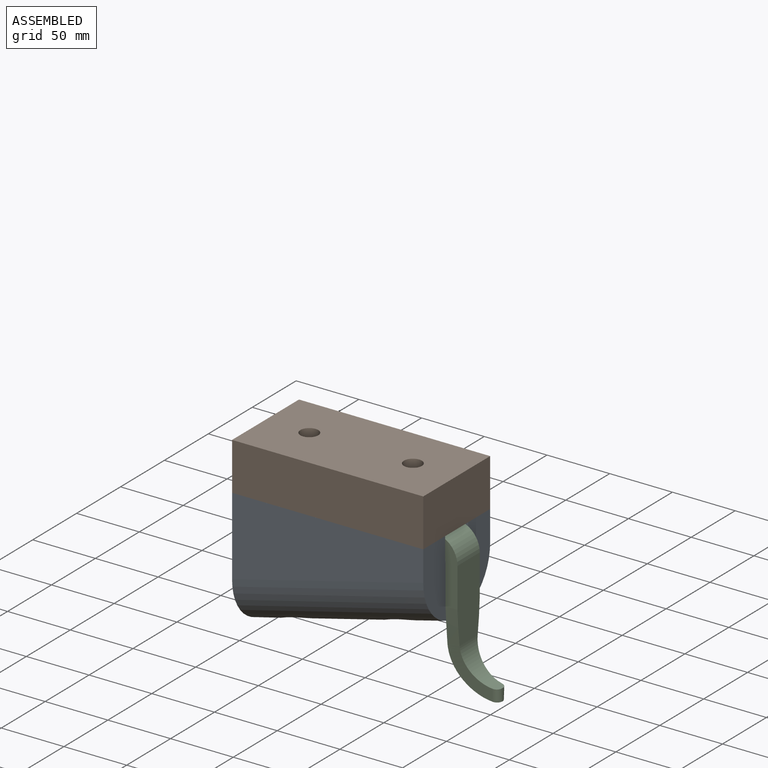
[diagram: assembled view]
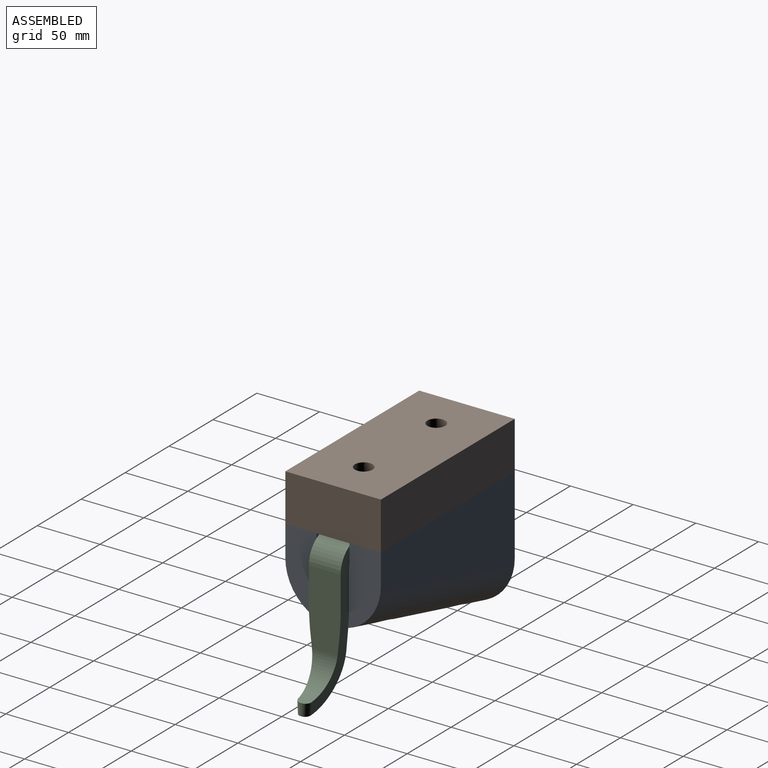
[diagram: assembled view, second angle]
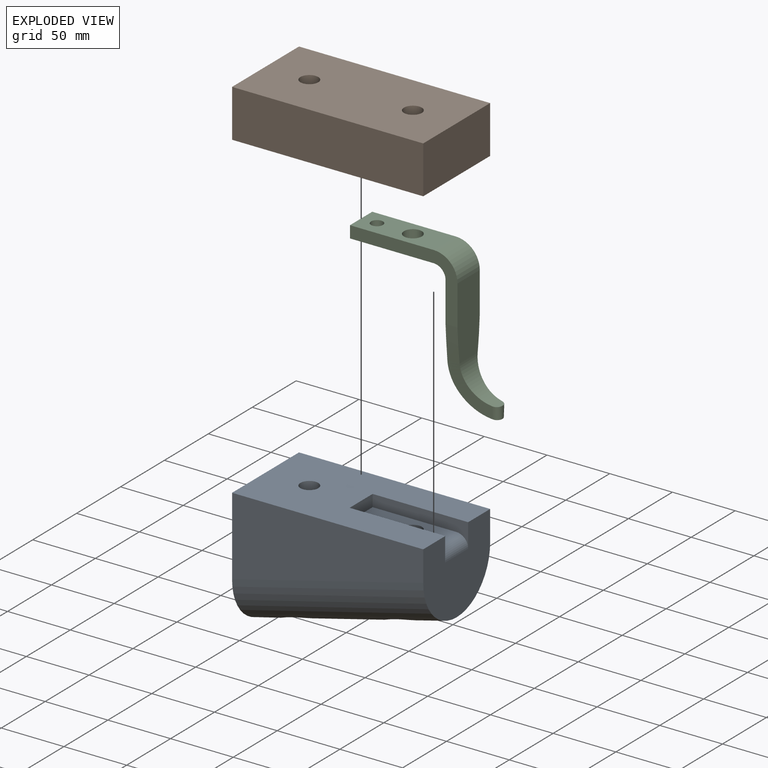
[diagram: exploded view]
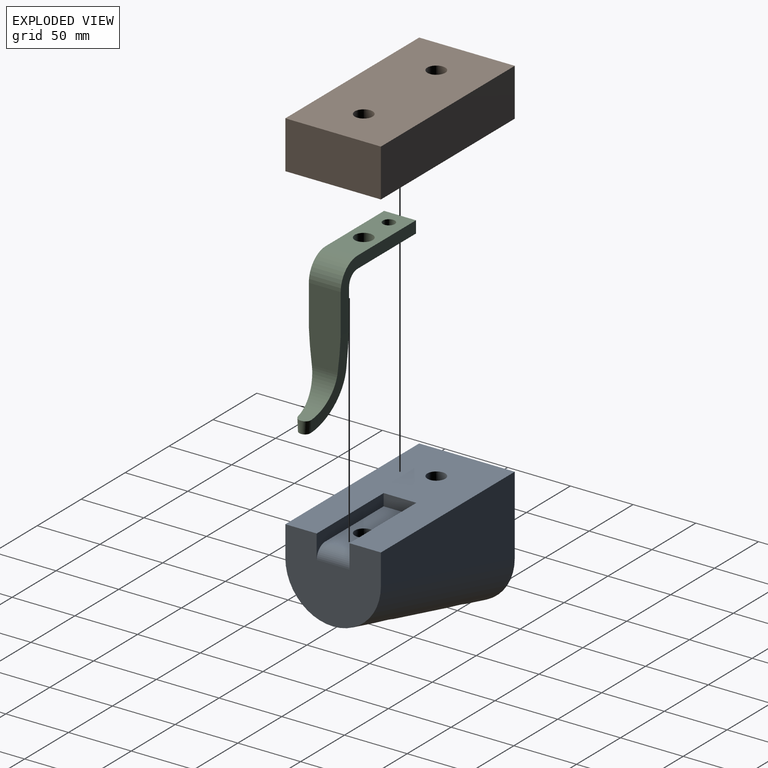
[diagram: exploded view, second angle]
ASSEMBLY  parts=3 mates=2
PART A: 17 faces, bbox 170.9x76.2x101.6 mm
  f0: cylinder r=7.14mm len=34.93mm, axis (0,0,-1), area 1567.6mm2, adj f9,f15
  f1: plane 152.4x76.2mm, normal (0,0,1), area 9456.6mm2, adj f2,f3,f4,f5,f6,f12,f13,f14
  f2: plane 152.4x62.33mm, normal (0,1,0), area 6595.5mm2, adj f1,f3,f5,f11
  f3: plane 101.6x76.2mm, normal (-1,0,0), area 7099.7mm2, adj f1,f2,f4,f11
  f4: plane 152.4x62.33mm, normal (0,-1,0), area 6595.5mm2, adj f1,f3,f5,f11
  f5: plane 76.2x63.5mm, normal (1,0,0), area 3697.5mm2, adj f1,f2,f4,f11,f12,f13,f16
  f6: cylinder r=7.14mm len=63.5mm, axis (0,0,-1), area 2850.2mm2, adj f1,f7
  f7: plane 38.1x38.1mm, normal (0,0,-1), area 979.8mm2, adj f6,f8
  f8: cylinder r=19.05mm len=38.1mm, axis (0,0,-1), area 3206mm2, adj f7,f11
  f9: plane 38.1x38.1mm, normal (0,0,-1), area 979.8mm2, adj f0,f10
  f10: cylinder r=19.05mm len=38.1mm, axis (0,0,-1), area 3016mm2, adj f9,f11
  f11: cylinder r=38.1mm len=170.91mm, axis (0.97,0,0.24), area 16370mm2, adj f2,f3,f4,f5,f8,f10
  f12: plane 76.2x19.05mm, normal (0,1,0), area 745.3mm2, adj f1,f5,f14,f15,f16
  f13: plane 76.2x19.05mm, normal (0,-1,0), area 745.3mm2, adj f1,f5,f14,f15,f16
  f14: plane 26.19x9.53mm, normal (1,0,0), area 249.5mm2, adj f1,f12,f13,f15
  f15: plane 66.68x26.19mm, normal (0,0,1), area 1586.1mm2, adj f0,f12,f13,f14,f16
  f16: cylinder r=9.53mm len=26.19mm, axis (0,-1,0), area 391.9mm2, adj f5,f12,f13,f15
PART B: 8 faces, bbox 152.4x76.2x38.1 mm
  f0: plane 76.2x38.1mm, normal (1,0,0), area 2903.2mm2, adj f1,f3,f5,f7
  f1: plane 152.4x38.1mm, normal (0,-1,0), area 5806.4mm2, adj f0,f2,f5,f7
  f2: plane 76.2x38.1mm, normal (-1,0,0), area 2903.2mm2, adj f1,f3,f5,f7
  f3: plane 152.4x38.1mm, normal (0,1,0), area 5806.4mm2, adj f0,f2,f5,f7
  f4: cylinder r=7.14mm len=38.1mm, axis (0,0,-1), area 1710.1mm2, adj f5,f7
  f5: plane 152.4x76.2mm, normal (0,0,1), area 11292.2mm2, adj f0,f1,f2,f3,f4,f6
  f6: cylinder r=7.14mm len=38.1mm, axis (0,0,-1), area 1710.1mm2, adj f5,f7
  f7: plane 152.4x76.2mm, normal (0,0,-1), area 11292.2mm2, adj f0,f1,f2,f3,f4,f6
PART C: 16 faces, bbox 112.7x25.4x114.3 mm
  f0: plane 9.55x1mm, normal (1,0,0), area 3.1mm2, adj f6,f11,f13
  f1: plane 25.4x9.53mm, normal (-1,0,0), area 241.9mm2, adj f2,f3,f7,f12
  f2: plane 85.73x50.81mm, normal (0,-1,0), area 1151.3mm2, adj f1,f3,f4,f5,f7,f8,f9,f11
  f3: plane 66.68x25.4mm, normal (0,0,1), area 1462mm2, adj f1,f2,f4,f12,f14,f15
  f4: cylinder r=19.05mm len=25.4mm, axis (0,-1,0), area 760.1mm2, adj f2,f3,f5,f12
  f5: plane 58.75x25.41mm, normal (1,0,0), area 1437.9mm2, adj f2,f4,f6,f11,f12,f13
  f6: cylinder r=26.99mm len=26.99mm, axis (0,-1,0), area 622.5mm2, adj f0,f5,f11,f13
  f7: plane 66.68x25.4mm, normal (0,0,-1), area 1462mm2, adj f1,f2,f8,f12,f14,f15
  f8: cylinder r=9.53mm len=25.4mm, axis (0,-1,0), area 380mm2, adj f2,f7,f9,f12
  f9: plane 58.74x25.4mm, normal (-1,0,0), area 1440.4mm2, adj f2,f8,f10,f11,f12,f13
  f10: cylinder r=36.51mm len=36.51mm, axis (0,-1,0), area 835.5mm2, adj f9,f11,f13
  f11: bspline ~63.5x55.56mm, area 762.4mm2, adj f0,f2,f5,f6,f9,f10
  f12: plane 85.73x50.81mm, normal (0,1,0), area 1151.3mm2, adj f1,f3,f4,f5,f7,f8,f9,f13
  f13: bspline ~63.5x55.56mm, area 762.4mm2, adj f0,f5,f6,f9,f10,f12
  f14: cylinder r=7.14mm len=14.29mm, axis (0,0,1), area 427.5mm2, adj f3,f7
  f15: cylinder r=4.76mm len=9.53mm, axis (0,0,1), area 285mm2, adj f3,f7
PLACE A t=(-89.97,-35.16,4.69)mm
PLACE B t=(-89.97,-35.16,4.69)mm
PLACE C t=(-89.97,-35.16,4.69)mm
MATE fastened C.f14 <-> A.f0  axis (0,0,1) through (27.77,-35.16,-42.94)mm
MATE fastened B.f4 <-> A.f6  axis (0,0,-1) through (-54.78,-35.16,-33.41)mm
